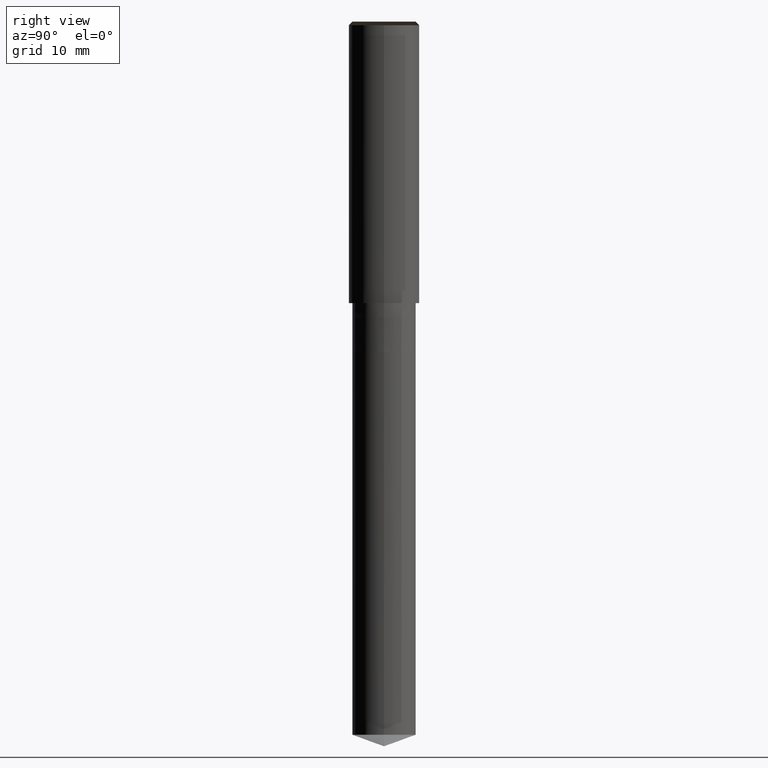
[diagram: clean part render]
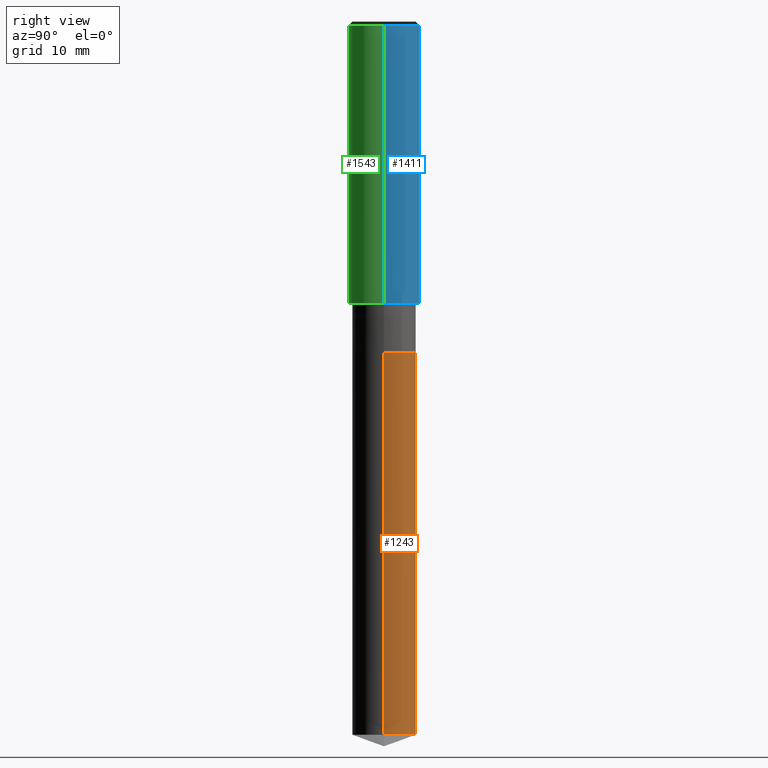
[diagram: same view with three faces highlighted in distinct colors, each labeled with its STEP entity id]
A machine part, right view with three faces highlighted in distinct colors.
Their STEP definitions:

[orange] entity #1243 — the highlighted face is a freeform B-spline surface patch.
#1145=CARTESIAN_POINT('',(4.5,0.0,-61.362133945802));
#1146=CARTESIAN_POINT('',(4.5,4.5,-61.362133945802));
#1147=CARTESIAN_POINT('',(0.0,4.5,-61.362133945802));
#1148=CARTESIAN_POINT('',(-4.5,4.5,-61.362133945802));
#1149=CARTESIAN_POINT('',(-4.5,0.0,-61.362133945802));
#1150=CARTESIAN_POINT('',(4.5,0.0,-7.0));
#1151=CARTESIAN_POINT('',(4.5,4.5,-7.0));
#1152=CARTESIAN_POINT('',(0.0,4.5,-7.0));
#1153=CARTESIAN_POINT('',(-4.5,4.5,-7.0));
#1154=CARTESIAN_POINT('',(-4.5,0.0,-7.0));
#1224=(
BOUNDED_SURFACE()
B_SPLINE_SURFACE(1,2,(
(#1145,#1146,#1147,#1148,#1149),
(#1150,#1151,#1152,#1153,#1154)
), .UNSPECIFIED.,.F.,.F.,.F.)
B_SPLINE_SURFACE_WITH_KNOTS((2,2),(3,2,3),(
0.0,1.0),(
0.0,0.5,1.0), .UNSPECIFIED.)
GEOMETRIC_REPRESENTATION_ITEM()
RATIONAL_B_SPLINE_SURFACE(((1.0,0.707106781187,1.0,0.707106781187,1.0),
(1.0,0.707106781187,1.0,0.707106781187,1.0)
))
REPRESENTATION_ITEM('')
SURFACE()
);
#1225=(
BOUNDED_CURVE()
B_SPLINE_CURVE(2,(#1149,#1148,#1147,#1146,#1145),.UNSPECIFIED.,.F.,.F.)
B_SPLINE_CURVE_WITH_KNOTS((3,2,3),
(0.0,0.5,1.0),.UNSPECIFIED.)
CURVE()
GEOMETRIC_REPRESENTATION_ITEM()
RATIONAL_B_SPLINE_CURVE((1.0,0.707106781187,1.0,0.707106781187,1.0))
REPRESENTATION_ITEM('')
);
#1226=(
BOUNDED_CURVE()
B_SPLINE_CURVE(1,(#1145,#1150),.UNSPECIFIED.,.F.,.F.)
B_SPLINE_CURVE_WITH_KNOTS((2,2),
(0.0,1.0),.UNSPECIFIED.)
CURVE()
GEOMETRIC_REPRESENTATION_ITEM()
RATIONAL_B_SPLINE_CURVE((1.0,1.0))
REPRESENTATION_ITEM('')
);
#1227=(
BOUNDED_CURVE()
B_SPLINE_CURVE(2,(#1150,#1151,#1152,#1153,#1154),.UNSPECIFIED.,.F.,.F.)
B_SPLINE_CURVE_WITH_KNOTS((3,2,3),
(0.0,0.5,1.0),.UNSPECIFIED.)
CURVE()
GEOMETRIC_REPRESENTATION_ITEM()
RATIONAL_B_SPLINE_CURVE((1.0,0.707106781187,1.0,0.707106781187,1.0))
REPRESENTATION_ITEM('')
);
#1228=(
BOUNDED_CURVE()
B_SPLINE_CURVE(1,(#1154,#1149),.UNSPECIFIED.,.F.,.F.)
B_SPLINE_CURVE_WITH_KNOTS((2,2),
(0.0,1.0),.UNSPECIFIED.)
CURVE()
GEOMETRIC_REPRESENTATION_ITEM()
RATIONAL_B_SPLINE_CURVE((1.0,1.0))
REPRESENTATION_ITEM('')
);
#1229=VERTEX_POINT('',#1145);
#1230=VERTEX_POINT('',#1149);
#1231=VERTEX_POINT('',#1150);
#1232=VERTEX_POINT('',#1154);
#1233=EDGE_CURVE('',#1230,#1229,#1225,.T.);
#1234=EDGE_CURVE('',#1229,#1231,#1226,.T.);
#1235=EDGE_CURVE('',#1231,#1232,#1227,.T.);
#1236=EDGE_CURVE('',#1232,#1230,#1228,.T.);
#1237=ORIENTED_EDGE('',*,*,#1233,.T.);
#1238=ORIENTED_EDGE('',*,*,#1234,.T.);
#1239=ORIENTED_EDGE('',*,*,#1235,.T.);
#1240=ORIENTED_EDGE('',*,*,#1236,.T.);
#1241=EDGE_LOOP('',(#1237,#1238,#1239,#1240));
#1242=FACE_OUTER_BOUND('',#1241,.T.);
#1243=ADVANCED_FACE('',(#1242),#1224,.T.);

[blue] entity #1411 — the highlighted face is a freeform B-spline surface patch.
#1172=CARTESIAN_POINT('',(5.0,0.0,0.0));
#1173=CARTESIAN_POINT('',(5.0,5.0,0.0));
#1174=CARTESIAN_POINT('',(0.0,5.0,0.0));
#1175=CARTESIAN_POINT('',(-5.0,5.0,0.0));
#1176=CARTESIAN_POINT('',(-5.0,0.0,0.0));
#1177=CARTESIAN_POINT('',(5.0,0.0,39.5));
#1178=CARTESIAN_POINT('',(5.0,5.0,39.5));
#1179=CARTESIAN_POINT('',(0.0,5.0,39.5));
#1180=CARTESIAN_POINT('',(-5.0,5.0,39.5));
#1181=CARTESIAN_POINT('',(-5.0,0.0,39.5));
#1392=(
BOUNDED_SURFACE()
B_SPLINE_SURFACE(1,2,(
(#1172,#1173,#1174,#1175,#1176),
(#1177,#1178,#1179,#1180,#1181)
), .UNSPECIFIED.,.F.,.F.,.F.)
B_SPLINE_SURFACE_WITH_KNOTS((2,2),(3,2,3),(
0.0,1.0),(
0.0,0.5,1.0), .UNSPECIFIED.)
GEOMETRIC_REPRESENTATION_ITEM()
RATIONAL_B_SPLINE_SURFACE(((1.0,0.707106781187,1.0,0.707106781187,1.0),
(1.0,0.707106781187,1.0,0.707106781187,1.0)
))
REPRESENTATION_ITEM('')
SURFACE()
);
#1393=(
BOUNDED_CURVE()
B_SPLINE_CURVE(2,(#1176,#1175,#1174,#1173,#1172),.UNSPECIFIED.,.F.,.F.)
B_SPLINE_CURVE_WITH_KNOTS((3,2,3),
(0.0,0.5,1.0),.UNSPECIFIED.)
CURVE()
GEOMETRIC_REPRESENTATION_ITEM()
RATIONAL_B_SPLINE_CURVE((1.0,0.707106781187,1.0,0.707106781187,1.0))
REPRESENTATION_ITEM('')
);
#1394=(
BOUNDED_CURVE()
B_SPLINE_CURVE(1,(#1172,#1177),.UNSPECIFIED.,.F.,.F.)
B_SPLINE_CURVE_WITH_KNOTS((2,2),
(0.0,1.0),.UNSPECIFIED.)
CURVE()
GEOMETRIC_REPRESENTATION_ITEM()
RATIONAL_B_SPLINE_CURVE((1.0,1.0))
REPRESENTATION_ITEM('')
);
#1395=(
BOUNDED_CURVE()
B_SPLINE_CURVE(2,(#1177,#1178,#1179,#1180,#1181),.UNSPECIFIED.,.F.,.F.)
B_SPLINE_CURVE_WITH_KNOTS((3,2,3),
(0.0,0.5,1.0),.UNSPECIFIED.)
CURVE()
GEOMETRIC_REPRESENTATION_ITEM()
RATIONAL_B_SPLINE_CURVE((1.0,0.707106781187,1.0,0.707106781187,1.0))
REPRESENTATION_ITEM('')
);
#1396=(
BOUNDED_CURVE()
B_SPLINE_CURVE(1,(#1181,#1176),.UNSPECIFIED.,.F.,.F.)
B_SPLINE_CURVE_WITH_KNOTS((2,2),
(0.0,1.0),.UNSPECIFIED.)
CURVE()
GEOMETRIC_REPRESENTATION_ITEM()
RATIONAL_B_SPLINE_CURVE((1.0,1.0))
REPRESENTATION_ITEM('')
);
#1397=VERTEX_POINT('',#1172);
#1398=VERTEX_POINT('',#1176);
#1399=VERTEX_POINT('',#1177);
#1400=VERTEX_POINT('',#1181);
#1401=EDGE_CURVE('',#1398,#1397,#1393,.T.);
#1402=EDGE_CURVE('',#1397,#1399,#1394,.T.);
#1403=EDGE_CURVE('',#1399,#1400,#1395,.T.);
#1404=EDGE_CURVE('',#1400,#1398,#1396,.T.);
#1405=ORIENTED_EDGE('',*,*,#1401,.T.);
#1406=ORIENTED_EDGE('',*,*,#1402,.T.);
#1407=ORIENTED_EDGE('',*,*,#1403,.T.);
#1408=ORIENTED_EDGE('',*,*,#1404,.T.);
#1409=EDGE_LOOP('',(#1405,#1406,#1407,#1408));
#1410=FACE_OUTER_BOUND('',#1409,.T.);
#1411=ADVANCED_FACE('',(#1410),#1392,.T.);

[green] entity #1543 — the highlighted face is a freeform B-spline surface patch.
#1172=CARTESIAN_POINT('',(5.0,0.0,0.0));
#1176=CARTESIAN_POINT('',(-5.0,0.0,0.0));
#1177=CARTESIAN_POINT('',(5.0,0.0,39.5));
#1181=CARTESIAN_POINT('',(-5.0,0.0,39.5));
#1194=CARTESIAN_POINT('',(-5.0,-5.0,0.0));
#1195=CARTESIAN_POINT('',(0.0,-5.0,0.0));
#1196=CARTESIAN_POINT('',(5.0,-5.0,0.0));
#1197=CARTESIAN_POINT('',(-5.0,-5.0,39.5));
#1198=CARTESIAN_POINT('',(0.0,-5.0,39.5));
#1199=CARTESIAN_POINT('',(5.0,-5.0,39.5));
#1524=(
BOUNDED_SURFACE()
B_SPLINE_SURFACE(1,2,(
(#1176,#1194,#1195,#1196,#1172),
(#1181,#1197,#1198,#1199,#1177)
), .UNSPECIFIED.,.F.,.F.,.F.)
B_SPLINE_SURFACE_WITH_KNOTS((2,2),(3,2,3),(
0.0,1.0),(
0.0,0.5,1.0), .UNSPECIFIED.)
GEOMETRIC_REPRESENTATION_ITEM()
RATIONAL_B_SPLINE_SURFACE(((1.0,0.707106781187,1.0,0.707106781187,1.0),
(1.0,0.707106781187,1.0,0.707106781187,1.0)
))
REPRESENTATION_ITEM('')
SURFACE()
);
#1525=(
BOUNDED_CURVE()
B_SPLINE_CURVE(2,(#1172,#1196,#1195,#1194,#1176),.UNSPECIFIED.,.F.,.F.)
B_SPLINE_CURVE_WITH_KNOTS((3,2,3),
(0.0,0.5,1.0),.UNSPECIFIED.)
CURVE()
GEOMETRIC_REPRESENTATION_ITEM()
RATIONAL_B_SPLINE_CURVE((1.0,0.707106781187,1.0,0.707106781187,1.0))
REPRESENTATION_ITEM('')
);
#1526=(
BOUNDED_CURVE()
B_SPLINE_CURVE(1,(#1176,#1181),.UNSPECIFIED.,.F.,.F.)
B_SPLINE_CURVE_WITH_KNOTS((2,2),
(0.0,1.0),.UNSPECIFIED.)
CURVE()
GEOMETRIC_REPRESENTATION_ITEM()
RATIONAL_B_SPLINE_CURVE((1.0,1.0))
REPRESENTATION_ITEM('')
);
#1527=(
BOUNDED_CURVE()
B_SPLINE_CURVE(2,(#1181,#1197,#1198,#1199,#1177),.UNSPECIFIED.,.F.,.F.)
B_SPLINE_CURVE_WITH_KNOTS((3,2,3),
(0.0,0.5,1.0),.UNSPECIFIED.)
CURVE()
GEOMETRIC_REPRESENTATION_ITEM()
RATIONAL_B_SPLINE_CURVE((1.0,0.707106781187,1.0,0.707106781187,1.0))
REPRESENTATION_ITEM('')
);
#1528=(
BOUNDED_CURVE()
B_SPLINE_CURVE(1,(#1177,#1172),.UNSPECIFIED.,.F.,.F.)
B_SPLINE_CURVE_WITH_KNOTS((2,2),
(0.0,1.0),.UNSPECIFIED.)
CURVE()
GEOMETRIC_REPRESENTATION_ITEM()
RATIONAL_B_SPLINE_CURVE((1.0,1.0))
REPRESENTATION_ITEM('')
);
#1529=VERTEX_POINT('',#1172);
#1530=VERTEX_POINT('',#1176);
#1531=VERTEX_POINT('',#1177);
#1532=VERTEX_POINT('',#1181);
#1533=EDGE_CURVE('',#1529,#1530,#1525,.T.);
#1534=EDGE_CURVE('',#1530,#1532,#1526,.T.);
#1535=EDGE_CURVE('',#1532,#1531,#1527,.T.);
#1536=EDGE_CURVE('',#1531,#1529,#1528,.T.);
#1537=ORIENTED_EDGE('',*,*,#1533,.T.);
#1538=ORIENTED_EDGE('',*,*,#1534,.T.);
#1539=ORIENTED_EDGE('',*,*,#1535,.T.);
#1540=ORIENTED_EDGE('',*,*,#1536,.T.);
#1541=EDGE_LOOP('',(#1537,#1538,#1539,#1540));
#1542=FACE_OUTER_BOUND('',#1541,.T.);
#1543=ADVANCED_FACE('',(#1542),#1524,.T.);